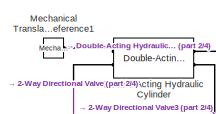
[diagram: root canvas - part 1/4, top center region]
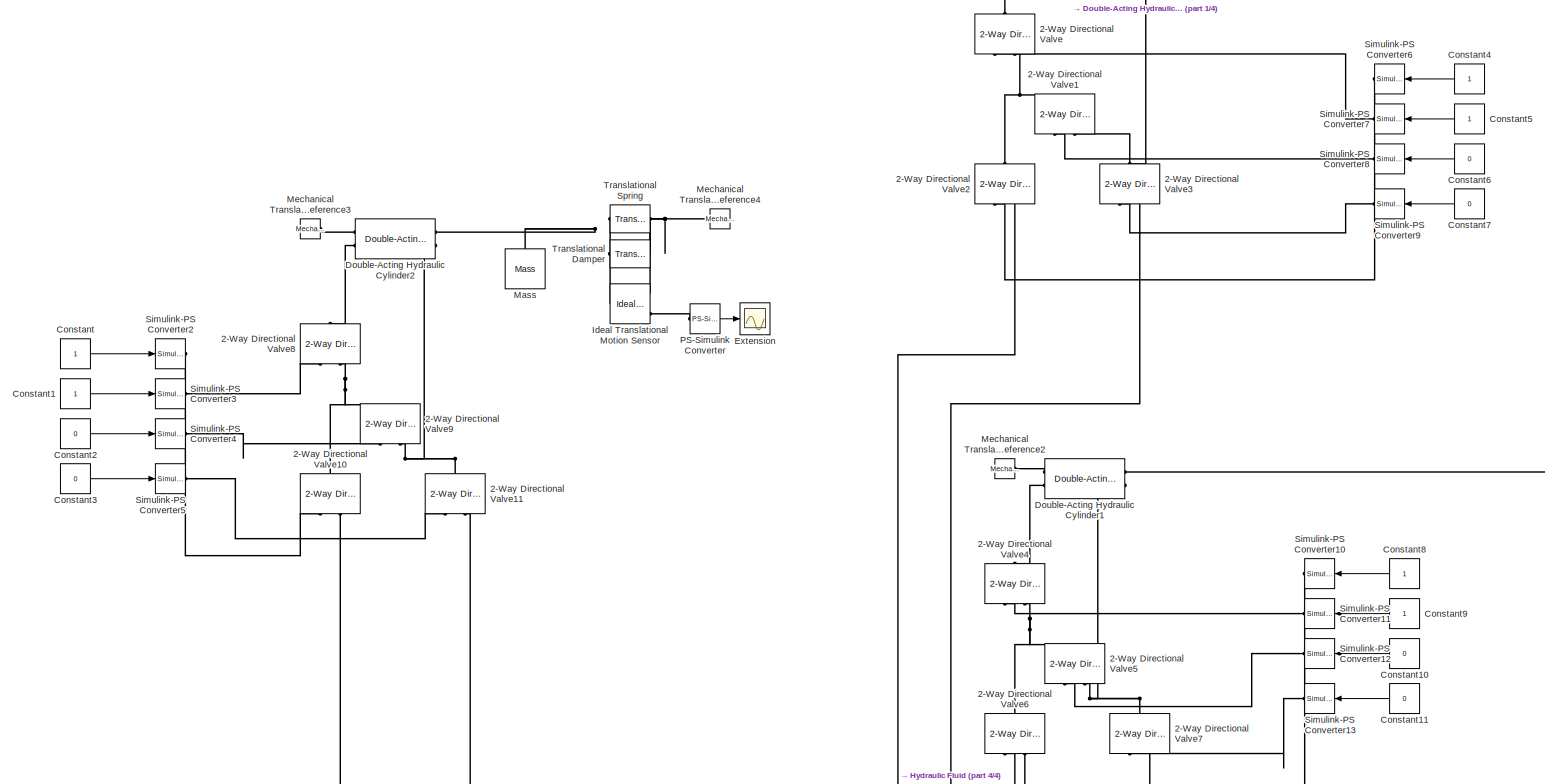
[diagram: root canvas - part 2/4, full width, middle band]
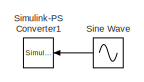
[diagram: root canvas - part 3/4, top right region]
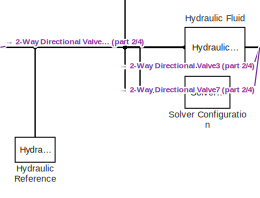
[diagram: root canvas - part 4/4, bottom center region]
MODEL slx_17e546ba9f6c
KIND model
BLOCK [Reference] 2-Way Directional Valve  REF=sh_lib/Valves/Directional Valves/2-Way Directional
Valve
  A_leak = 1e-12
  A_leak_unit = m^2
  C_d = 0.7
  C_d_unit = 1
  ClassName = valve_dir_2_way
  ComponentPath = sh.valves.directional_valves.valve_dir_2_way
  ComponentVariantNames = valve_dir_2_way
  ComponentVariants = sh.valves.directional_valves.valve_dir_2_way
  Ports = [0, 0, 0, 0, 0, 2, 1]
  Re_cr = 12
  Re_cr_unit = 1
  SchemaVersion = 1
  SourceBlock = sh_lib/Valves/Directional Valves/2-Way Directional\nValve
  SourceFile = sh.valves.directional_valves.valve_dir_2_way
  SourceType = 2-Way Directional\nValve
  area_max = 5e-5
  area_max_unit = m^2
  area_tab = [ 1e-9 2.0352e-7 4.0736e-5 1.1438e-4 3.4356e-4 ]
  area_tab_unit = m^2
  extrap_method = 1
  extrap_method_unit = 1
  flow_rate_tab = [ -1e-7 -7.0711e-8 -4.4721e-8 4.4721e-8 7.0711e-8 1e-7; -2.0352e-5 -1.4391e-5 -9.1017e-6 9.1017e-6 1.4391e-5 2.0352e-5; -0.0040736 -0.0028805 -0.0018218 0.0018218 0.0028805 0.0040736; -0.011438 -0.0080879 -0.0051152 0.0051152 0.0080879 0.011438; -0.034356 -0.024293 -0.015364 0.015364 0.024293 0.034356 ]  <repeated x12 — deduplicated; at blocks: 2-Way Directional Valve, 2-Way Directional Valve1, 2-Way Directional Valve10, 2-Way Directional Valve11, 2-Way Directional Valve2, 2-Way Directional Valve3, 2-Way Directional Valve4, 2-Way Directional Valve5, 2-Way Directional Valve6, 2-Way Directional Valve7, 2-Way Directional Valve8, 2-Way Directional Valve9>
  flow_rate_tab_unit = m^3/s
  interp_method = 1
  interp_method_unit = 1
  mdl_type = 1
  mdl_type_unit = 1
  opening_max = 0.005
  opening_max_unit = m
  opening_tab = [ -0.002 0 0.002 0.005 0.015 ]
  opening_tab_unit = m
  pressure_tab = [ -1e+7 -5e+6 -2e+6 2e+6 5e+6 1e+7 ]
  pressure_tab_unit = Pa
  x_0 = 0
  x_0_unit = m
BLOCK [Reference] 2-Way Directional Valve1  REF=sh_lib/Valves/Directional Valves/2-Way Directional
Valve
  A_leak = 1e-12
  A_leak_unit = m^2
  C_d = 0.7
  C_d_unit = 1
  ClassName = valve_dir_2_way
  ComponentPath = sh.valves.directional_valves.valve_dir_2_way
  ComponentVariantNames = valve_dir_2_way
  ComponentVariants = sh.valves.directional_valves.valve_dir_2_way
  Ports = [0, 0, 0, 0, 0, 2, 1]
  Re_cr = 12
  Re_cr_unit = 1
  SchemaVersion = 1
  SourceBlock = sh_lib/Valves/Directional Valves/2-Way Directional\nValve
  SourceFile = sh.valves.directional_valves.valve_dir_2_way
  SourceType = 2-Way Directional\nValve
  area_max = 5e-5
  area_max_unit = m^2
  area_tab = [ 1e-9 2.0352e-7 4.0736e-5 1.1438e-4 3.4356e-4 ]
  area_tab_unit = m^2
  extrap_method = 1
  extrap_method_unit = 1
  flow_rate_tab_unit = m^3/s
  interp_method = 1
  interp_method_unit = 1
  mdl_type = 1
  mdl_type_unit = 1
  opening_max = 0.005
  opening_max_unit = m
  opening_tab = [ -0.002 0 0.002 0.005 0.015 ]
  opening_tab_unit = m
  pressure_tab = [ -1e+7 -5e+6 -2e+6 2e+6 5e+6 1e+7 ]
  pressure_tab_unit = Pa
  x_0 = 0
  x_0_unit = m
BLOCK [Reference] 2-Way Directional Valve10  REF=sh_lib/Valves/Directional Valves/2-Way Directional
Valve
  A_leak = 1e-12
  A_leak_unit = m^2
  C_d = 0.7
  C_d_unit = 1
  ClassName = valve_dir_2_way
  ComponentPath = sh.valves.directional_valves.valve_dir_2_way
  ComponentVariantNames = valve_dir_2_way
  ComponentVariants = sh.valves.directional_valves.valve_dir_2_way
  Ports = [0, 0, 0, 0, 0, 2, 1]
  Re_cr = 12
  Re_cr_unit = 1
  SchemaVersion = 1
  SourceBlock = sh_lib/Valves/Directional Valves/2-Way Directional\nValve
  SourceFile = sh.valves.directional_valves.valve_dir_2_way
  SourceType = 2-Way Directional\nValve
  area_max = 5e-5
  area_max_unit = m^2
  area_tab = [ 1e-9 2.0352e-7 4.0736e-5 1.1438e-4 3.4356e-4 ]
  area_tab_unit = m^2
  extrap_method = 1
  extrap_method_unit = 1
  flow_rate_tab_unit = m^3/s
  interp_method = 1
  interp_method_unit = 1
  mdl_type = 1
  mdl_type_unit = 1
  opening_max = 0.005
  opening_max_unit = m
  opening_tab = [ -0.002 0 0.002 0.005 0.015 ]
  opening_tab_unit = m
  pressure_tab = [ -1e+7 -5e+6 -2e+6 2e+6 5e+6 1e+7 ]
  pressure_tab_unit = Pa
  x_0 = 0
  x_0_unit = m
BLOCK [Reference] 2-Way Directional Valve11  REF=sh_lib/Valves/Directional Valves/2-Way Directional
Valve
  A_leak = 1e-12
  A_leak_unit = m^2
  C_d = 0.7
  C_d_unit = 1
  ClassName = valve_dir_2_way
  ComponentPath = sh.valves.directional_valves.valve_dir_2_way
  ComponentVariantNames = valve_dir_2_way
  ComponentVariants = sh.valves.directional_valves.valve_dir_2_way
  Ports = [0, 0, 0, 0, 0, 2, 1]
  Re_cr = 12
  Re_cr_unit = 1
  SchemaVersion = 1
  SourceBlock = sh_lib/Valves/Directional Valves/2-Way Directional\nValve
  SourceFile = sh.valves.directional_valves.valve_dir_2_way
  SourceType = 2-Way Directional\nValve
  area_max = 5e-5
  area_max_unit = m^2
  area_tab = [ 1e-9 2.0352e-7 4.0736e-5 1.1438e-4 3.4356e-4 ]
  area_tab_unit = m^2
  extrap_method = 1
  extrap_method_unit = 1
  flow_rate_tab_unit = m^3/s
  interp_method = 1
  interp_method_unit = 1
  mdl_type = 1
  mdl_type_unit = 1
  opening_max = 0.005
  opening_max_unit = m
  opening_tab = [ -0.002 0 0.002 0.005 0.015 ]
  opening_tab_unit = m
  pressure_tab = [ -1e+7 -5e+6 -2e+6 2e+6 5e+6 1e+7 ]
  pressure_tab_unit = Pa
  x_0 = 0
  x_0_unit = m
BLOCK [Reference] 2-Way Directional Valve2  REF=sh_lib/Valves/Directional Valves/2-Way Directional
Valve
  A_leak = 1e-12
  A_leak_unit = m^2
  C_d = 0.7
  C_d_unit = 1
  ClassName = valve_dir_2_way
  ComponentPath = sh.valves.directional_valves.valve_dir_2_way
  ComponentVariantNames = valve_dir_2_way
  ComponentVariants = sh.valves.directional_valves.valve_dir_2_way
  Ports = [0, 0, 0, 0, 0, 2, 1]
  Re_cr = 12
  Re_cr_unit = 1
  SchemaVersion = 1
  SourceBlock = sh_lib/Valves/Directional Valves/2-Way Directional\nValve
  SourceFile = sh.valves.directional_valves.valve_dir_2_way
  SourceType = 2-Way Directional\nValve
  area_max = 5e-5
  area_max_unit = m^2
  area_tab = [ 1e-9 2.0352e-7 4.0736e-5 1.1438e-4 3.4356e-4 ]
  area_tab_unit = m^2
  extrap_method = 1
  extrap_method_unit = 1
  flow_rate_tab_unit = m^3/s
  interp_method = 1
  interp_method_unit = 1
  mdl_type = 1
  mdl_type_unit = 1
  opening_max = 0.005
  opening_max_unit = m
  opening_tab = [ -0.002 0 0.002 0.005 0.015 ]
  opening_tab_unit = m
  pressure_tab = [ -1e+7 -5e+6 -2e+6 2e+6 5e+6 1e+7 ]
  pressure_tab_unit = Pa
  x_0 = 0
  x_0_unit = m
BLOCK [Reference] 2-Way Directional Valve3  REF=sh_lib/Valves/Directional Valves/2-Way Directional
Valve
  A_leak = 1e-12
  A_leak_unit = m^2
  C_d = 0.7
  C_d_unit = 1
  ClassName = valve_dir_2_way
  ComponentPath = sh.valves.directional_valves.valve_dir_2_way
  ComponentVariantNames = valve_dir_2_way
  ComponentVariants = sh.valves.directional_valves.valve_dir_2_way
  Ports = [0, 0, 0, 0, 0, 2, 1]
  Re_cr = 12
  Re_cr_unit = 1
  SchemaVersion = 1
  SourceBlock = sh_lib/Valves/Directional Valves/2-Way Directional\nValve
  SourceFile = sh.valves.directional_valves.valve_dir_2_way
  SourceType = 2-Way Directional\nValve
  area_max = 5e-5
  area_max_unit = m^2
  area_tab = [ 1e-9 2.0352e-7 4.0736e-5 1.1438e-4 3.4356e-4 ]
  area_tab_unit = m^2
  extrap_method = 1
  extrap_method_unit = 1
  flow_rate_tab_unit = m^3/s
  interp_method = 1
  interp_method_unit = 1
  mdl_type = 1
  mdl_type_unit = 1
  opening_max = 0.005
  opening_max_unit = m
  opening_tab = [ -0.002 0 0.002 0.005 0.015 ]
  opening_tab_unit = m
  pressure_tab = [ -1e+7 -5e+6 -2e+6 2e+6 5e+6 1e+7 ]
  pressure_tab_unit = Pa
  x_0 = 0
  x_0_unit = m
BLOCK [Reference] 2-Way Directional Valve4  REF=sh_lib/Valves/Directional Valves/2-Way Directional
Valve
  A_leak = 1e-12
  A_leak_unit = m^2
  C_d = 0.7
  C_d_unit = 1
  ClassName = valve_dir_2_way
  ComponentPath = sh.valves.directional_valves.valve_dir_2_way
  ComponentVariantNames = valve_dir_2_way
  ComponentVariants = sh.valves.directional_valves.valve_dir_2_way
  Ports = [0, 0, 0, 0, 0, 2, 1]
  Re_cr = 12
  Re_cr_unit = 1
  SchemaVersion = 1
  SourceBlock = sh_lib/Valves/Directional Valves/2-Way Directional\nValve
  SourceFile = sh.valves.directional_valves.valve_dir_2_way
  SourceType = 2-Way Directional\nValve
  area_max = 5e-5
  area_max_unit = m^2
  area_tab = [ 1e-9 2.0352e-7 4.0736e-5 1.1438e-4 3.4356e-4 ]
  area_tab_unit = m^2
  extrap_method = 1
  extrap_method_unit = 1
  flow_rate_tab_unit = m^3/s
  interp_method = 1
  interp_method_unit = 1
  mdl_type = 1
  mdl_type_unit = 1
  opening_max = 0.005
  opening_max_unit = m
  opening_tab = [ -0.002 0 0.002 0.005 0.015 ]
  opening_tab_unit = m
  pressure_tab = [ -1e+7 -5e+6 -2e+6 2e+6 5e+6 1e+7 ]
  pressure_tab_unit = Pa
  x_0 = 0
  x_0_unit = m
BLOCK [Reference] 2-Way Directional Valve5  REF=sh_lib/Valves/Directional Valves/2-Way Directional
Valve
  A_leak = 1e-12
  A_leak_unit = m^2
  C_d = 0.7
  C_d_unit = 1
  ClassName = valve_dir_2_way
  ComponentPath = sh.valves.directional_valves.valve_dir_2_way
  ComponentVariantNames = valve_dir_2_way
  ComponentVariants = sh.valves.directional_valves.valve_dir_2_way
  Ports = [0, 0, 0, 0, 0, 2, 1]
  Re_cr = 12
  Re_cr_unit = 1
  SchemaVersion = 1
  SourceBlock = sh_lib/Valves/Directional Valves/2-Way Directional\nValve
  SourceFile = sh.valves.directional_valves.valve_dir_2_way
  SourceType = 2-Way Directional\nValve
  area_max = 5e-5
  area_max_unit = m^2
  area_tab = [ 1e-9 2.0352e-7 4.0736e-5 1.1438e-4 3.4356e-4 ]
  area_tab_unit = m^2
  extrap_method = 1
  extrap_method_unit = 1
  flow_rate_tab_unit = m^3/s
  interp_method = 1
  interp_method_unit = 1
  mdl_type = 1
  mdl_type_unit = 1
  opening_max = 0.005
  opening_max_unit = m
  opening_tab = [ -0.002 0 0.002 0.005 0.015 ]
  opening_tab_unit = m
  pressure_tab = [ -1e+7 -5e+6 -2e+6 2e+6 5e+6 1e+7 ]
  pressure_tab_unit = Pa
  x_0 = 0
  x_0_unit = m
BLOCK [Reference] 2-Way Directional Valve6  REF=sh_lib/Valves/Directional Valves/2-Way Directional
Valve
  A_leak = 1e-12
  A_leak_unit = m^2
  C_d = 0.7
  C_d_unit = 1
  ClassName = valve_dir_2_way
  ComponentPath = sh.valves.directional_valves.valve_dir_2_way
  ComponentVariantNames = valve_dir_2_way
  ComponentVariants = sh.valves.directional_valves.valve_dir_2_way
  Ports = [0, 0, 0, 0, 0, 2, 1]
  Re_cr = 12
  Re_cr_unit = 1
  SchemaVersion = 1
  SourceBlock = sh_lib/Valves/Directional Valves/2-Way Directional\nValve
  SourceFile = sh.valves.directional_valves.valve_dir_2_way
  SourceType = 2-Way Directional\nValve
  area_max = 5e-5
  area_max_unit = m^2
  area_tab = [ 1e-9 2.0352e-7 4.0736e-5 1.1438e-4 3.4356e-4 ]
  area_tab_unit = m^2
  extrap_method = 1
  extrap_method_unit = 1
  flow_rate_tab_unit = m^3/s
  interp_method = 1
  interp_method_unit = 1
  mdl_type = 1
  mdl_type_unit = 1
  opening_max = 0.005
  opening_max_unit = m
  opening_tab = [ -0.002 0 0.002 0.005 0.015 ]
  opening_tab_unit = m
  pressure_tab = [ -1e+7 -5e+6 -2e+6 2e+6 5e+6 1e+7 ]
  pressure_tab_unit = Pa
  x_0 = 0
  x_0_unit = m
BLOCK [Reference] 2-Way Directional Valve7  REF=sh_lib/Valves/Directional Valves/2-Way Directional
Valve
  A_leak = 1e-12
  A_leak_unit = m^2
  C_d = 0.7
  C_d_unit = 1
  ClassName = valve_dir_2_way
  ComponentPath = sh.valves.directional_valves.valve_dir_2_way
  ComponentVariantNames = valve_dir_2_way
  ComponentVariants = sh.valves.directional_valves.valve_dir_2_way
  Ports = [0, 0, 0, 0, 0, 2, 1]
  Re_cr = 12
  Re_cr_unit = 1
  SchemaVersion = 1
  SourceBlock = sh_lib/Valves/Directional Valves/2-Way Directional\nValve
  SourceFile = sh.valves.directional_valves.valve_dir_2_way
  SourceType = 2-Way Directional\nValve
  area_max = 5e-5
  area_max_unit = m^2
  area_tab = [ 1e-9 2.0352e-7 4.0736e-5 1.1438e-4 3.4356e-4 ]
  area_tab_unit = m^2
  extrap_method = 1
  extrap_method_unit = 1
  flow_rate_tab_unit = m^3/s
  interp_method = 1
  interp_method_unit = 1
  mdl_type = 1
  mdl_type_unit = 1
  opening_max = 0.005
  opening_max_unit = m
  opening_tab = [ -0.002 0 0.002 0.005 0.015 ]
  opening_tab_unit = m
  pressure_tab = [ -1e+7 -5e+6 -2e+6 2e+6 5e+6 1e+7 ]
  pressure_tab_unit = Pa
  x_0 = 0
  x_0_unit = m
BLOCK [Reference] 2-Way Directional Valve8  REF=sh_lib/Valves/Directional Valves/2-Way Directional
Valve
  A_leak = 1e-12
  A_leak_unit = m^2
  C_d = 0.7
  C_d_unit = 1
  ClassName = valve_dir_2_way
  ComponentPath = sh.valves.directional_valves.valve_dir_2_way
  ComponentVariantNames = valve_dir_2_way
  ComponentVariants = sh.valves.directional_valves.valve_dir_2_way
  Ports = [0, 0, 0, 0, 0, 2, 1]
  Re_cr = 12
  Re_cr_unit = 1
  SchemaVersion = 1
  SourceBlock = sh_lib/Valves/Directional Valves/2-Way Directional\nValve
  SourceFile = sh.valves.directional_valves.valve_dir_2_way
  SourceType = 2-Way Directional\nValve
  area_max = 5e-5
  area_max_unit = m^2
  area_tab = [ 1e-9 2.0352e-7 4.0736e-5 1.1438e-4 3.4356e-4 ]
  area_tab_unit = m^2
  extrap_method = 1
  extrap_method_unit = 1
  flow_rate_tab_unit = m^3/s
  interp_method = 1
  interp_method_unit = 1
  mdl_type = 1
  mdl_type_unit = 1
  opening_max = 0.005
  opening_max_unit = m
  opening_tab = [ -0.002 0 0.002 0.005 0.015 ]
  opening_tab_unit = m
  pressure_tab = [ -1e+7 -5e+6 -2e+6 2e+6 5e+6 1e+7 ]
  pressure_tab_unit = Pa
  x_0 = 0
  x_0_unit = m
BLOCK [Reference] 2-Way Directional Valve9  REF=sh_lib/Valves/Directional Valves/2-Way Directional
Valve
  A_leak = 1e-12
  A_leak_unit = m^2
  C_d = 0.7
  C_d_unit = 1
  ClassName = valve_dir_2_way
  ComponentPath = sh.valves.directional_valves.valve_dir_2_way
  ComponentVariantNames = valve_dir_2_way
  ComponentVariants = sh.valves.directional_valves.valve_dir_2_way
  Ports = [0, 0, 0, 0, 0, 2, 1]
  Re_cr = 12
  Re_cr_unit = 1
  SchemaVersion = 1
  SourceBlock = sh_lib/Valves/Directional Valves/2-Way Directional\nValve
  SourceFile = sh.valves.directional_valves.valve_dir_2_way
  SourceType = 2-Way Directional\nValve
  area_max = 5e-5
  area_max_unit = m^2
  area_tab = [ 1e-9 2.0352e-7 4.0736e-5 1.1438e-4 3.4356e-4 ]
  area_tab_unit = m^2
  extrap_method = 1
  extrap_method_unit = 1
  flow_rate_tab_unit = m^3/s
  interp_method = 1
  interp_method_unit = 1
  mdl_type = 1
  mdl_type_unit = 1
  opening_max = 0.005
  opening_max_unit = m
  opening_tab = [ -0.002 0 0.002 0.005 0.015 ]
  opening_tab_unit = m
  pressure_tab = [ -1e+7 -5e+6 -2e+6 2e+6 5e+6 1e+7 ]
  pressure_tab_unit = Pa
  x_0 = 0
  x_0_unit = m
BLOCK [Constant] Constant
BLOCK [Constant] Constant1
BLOCK [Constant] Constant10
  Value = 0
BLOCK [Constant] Constant11
  Value = 0
BLOCK [Constant] Constant2
  Value = 0
BLOCK [Constant] Constant3
  Value = 0
BLOCK [Constant] Constant4
BLOCK [Constant] Constant5
BLOCK [Constant] Constant6
  Value = 0
BLOCK [Constant] Constant7
  Value = 0
BLOCK [Constant] Constant8
BLOCK [Constant] Constant9
BLOCK [Reference] Double-Acting Hydraulic Cylinder  REF=sh_lib/Hydraulic Cylinders/Double-Acting
Hydraulic Cylinder
  ClassName = cylinder_da
  ComponentPath = sh.cylinders.cylinder_da
  ComponentVariantNames = cylinder_da
  ComponentVariants = sh.cylinders.cylinder_da
  D = 150
  D_unit = N/(m/s)
  Ports = [0, 0, 0, 0, 0, 2, 2]
  SchemaVersion = 1
  SourceBlock = sh_lib/Hydraulic Cylinders/Double-Acting\nHydraulic Cylinder
  SourceFile = sh.cylinders.cylinder_da
  SourceType = Double-Acting\nHydraulic Cylinder
  area_A = 1e-3
  area_A_unit = m^2
  area_B = 0.5e-3
  area_B_unit = m^2
  dead_vol_A = 1e-4
  dead_vol_A_unit = m^3
  dead_vol_B = 1e-4
  dead_vol_B_unit = m^3
  init_pos = 0
  init_pos_unit = m
  init_pressure_A = 0
  init_pressure_A_unit = Pa
  init_pressure_B = 0
  init_pressure_B_unit = Pa
  k_sh = 1.4
  k_sh_unit = 1
  or = 1
  or_sign = 1
  or_sign_unit = 1
  or_unit = 1
  stiff = 1e6
  stiff_unit = N/m
  stroke = 0.1
  stroke_unit = m
BLOCK [Reference] Double-Acting Hydraulic Cylinder1  REF=sh_lib/Hydraulic Cylinders/Double-Acting
Hydraulic Cylinder
  ClassName = cylinder_da
  ComponentPath = sh.cylinders.cylinder_da
  ComponentVariantNames = cylinder_da
  ComponentVariants = sh.cylinders.cylinder_da
  D = 150
  D_unit = N/(m/s)
  Ports = [0, 0, 0, 0, 0, 2, 2]
  SchemaVersion = 1
  SourceBlock = sh_lib/Hydraulic Cylinders/Double-Acting\nHydraulic Cylinder
  SourceFile = sh.cylinders.cylinder_da
  SourceType = Double-Acting\nHydraulic Cylinder
  area_A = 1e-3
  area_A_unit = m^2
  area_B = 0.5e-3
  area_B_unit = m^2
  dead_vol_A = 1e-4
  dead_vol_A_unit = m^3
  dead_vol_B = 1e-4
  dead_vol_B_unit = m^3
  init_pos = 0
  init_pos_unit = m
  init_pressure_A = 0
  init_pressure_A_unit = Pa
  init_pressure_B = 0
  init_pressure_B_unit = Pa
  k_sh = 1.4
  k_sh_unit = 1
  or = 1
  or_sign = 1
  or_sign_unit = 1
  or_unit = 1
  stiff = 1e6
  stiff_unit = N/m
  stroke = 0.1
  stroke_unit = m
BLOCK [Reference] Double-Acting Hydraulic Cylinder2  REF=sh_lib/Hydraulic Cylinders/Double-Acting
Hydraulic Cylinder
  ClassName = cylinder_da
  ComponentPath = sh.cylinders.cylinder_da
  ComponentVariantNames = cylinder_da
  ComponentVariants = sh.cylinders.cylinder_da
  D = 150
  D_unit = N/(m/s)
  Ports = [0, 0, 0, 0, 0, 2, 2]
  SchemaVersion = 1
  SourceBlock = sh_lib/Hydraulic Cylinders/Double-Acting\nHydraulic Cylinder
  SourceFile = sh.cylinders.cylinder_da
  SourceType = Double-Acting\nHydraulic Cylinder
  area_A = 1e-3
  area_A_unit = m^2
  area_B = 0.5e-3
  area_B_unit = m^2
  dead_vol_A = 1e-4
  dead_vol_A_unit = m^3
  dead_vol_B = 1e-4
  dead_vol_B_unit = m^3
  init_pos = 0
  init_pos_unit = m
  init_pressure_A = 0
  init_pressure_A_unit = Pa
  init_pressure_B = 0
  init_pressure_B_unit = Pa
  k_sh = 1.4
  k_sh_unit = 1
  or = 1
  or_sign = 1
  or_sign_unit = 1
  or_unit = 1
  stiff = 1e6
  stiff_unit = N/m
  stroke = 0.1
  stroke_unit = m
BLOCK [Scope] Extension
  DataFormat = StructureWithTime
  Floating = off
  LimitDataPoints = off
  NumInputPorts = 1
  Ports = [1]
  SampleTime = 0
  SaveName = Actuation_System_DATA
  SaveToWorkspace = on
  ShowLegends = off
  TimeRange = 10
  YMax = 0.6000000000000001
  YMin = -0.2
BLOCK [Reference] Hydraulic Fluid  REF=sh_lib/Hydraulic Utilities/Hydraulic Fluid
  ClassName = hydraulic_fluid
  ComponentPath = sh.utilities.hydraulic_fluid
  ComponentVariantNames = hydraulic_fluid
  ComponentVariants = sh.utilities.hydraulic_fluid
  DataSource = 1
  DataSource_unit = 1
  Ports = [0, 0, 0, 0, 0, 0, 1]
  SchemaVersion = 1
  SelFluid = 24
  SelFluid_unit = 1
  SourceBlock = sh_lib/Hydraulic Utilities/Hydraulic Fluid
  SourceFile = sh.utilities.hydraulic_fluid
  SourceType = Hydraulic Fluid
  SysTemp = 60
  SysTemp_unit = c
  TrapAir = 0.005
  TrapAir_unit = 1
  ViscDerFactor = 1
  ViscDerFactor_unit = 1
  range_error = 2
  range_error_unit = 1
BLOCK [Reference] Hydraulic Reference  REF=fl_lib/Hydraulic/Hydraulic Elements/Hydraulic Reference
  ClassName = hydro_reference
  ComponentPath = foundation.hydraulic.elements.reference
  ComponentVariantNames = reference
  ComponentVariants = foundation.hydraulic.elements.reference
  Ports = [0, 0, 0, 0, 0, 1]
  SchemaVersion = 1
  SourceBlock = fl_lib/Hydraulic/Hydraulic Elements/Hydraulic Reference
  SourceFile = foundation.hydraulic.elements.reference
  SourceType = Hydraulic Reference
BLOCK [Reference] Ideal Translational Motion Sensor  REF=fl_lib/Mechanical/Mechanical Sensors/Ideal Translational
Motion Sensor
  ClassName = velocity
  ComponentPath = foundation.mechanical.sensors.velocity
  ComponentVariantNames = velocity
  ComponentVariants = foundation.mechanical.sensors.velocity
  Ports = [0, 0, 0, 0, 0, 1, 3]
  SchemaVersion = 1
  SourceBlock = fl_lib/Mechanical/Mechanical Sensors/Ideal Translational\nMotion Sensor
  SourceFile = foundation.mechanical.sensors.velocity
  SourceType = Ideal Translational\nMotion Sensor
  offset = 0
  offset_unit = m
BLOCK [Reference] Mass  REF=fl_lib/Mechanical/Translational
Elements/Mass
  ClassName = mass
  ComponentPath = foundation.mechanical.translational.mass
  ComponentVariantNames = mass
  ComponentVariants = foundation.mechanical.translational.mass
  Ports = [0, 0, 0, 0, 0, 1]
  SchemaVersion = 1
  SourceBlock = fl_lib/Mechanical/Translational\nElements/Mass
  SourceFile = foundation.mechanical.translational.mass
  SourceType = Mass
  f = 0
  f_priority = High
  f_specify = off
  f_unit = N
  mass = 100
  mass_unit = kg
  v = 0
  v_priority = High
  v_specify = on
  v_unit = m/s
BLOCK [Reference] Mechanical Translational Reference1  REF=fl_lib/Mechanical/Translational
Elements/Mechanical
Translational
Reference
  ClassName = reference_transl
  ComponentPath = foundation.mechanical.translational.reference
  ComponentVariantNames = reference
  ComponentVariants = foundation.mechanical.translational.reference
  Ports = [0, 0, 0, 0, 0, 1]
  SchemaVersion = 1
  SourceBlock = fl_lib/Mechanical/Translational\nElements/Mechanical\nTranslational\nReference
  SourceFile = foundation.mechanical.translational.reference
  SourceType = Mechanical\nTranslational\nReference
  Tag = Factory Generic
BLOCK [Reference] Mechanical Translational Reference2  REF=fl_lib/Mechanical/Translational
Elements/Mechanical
Translational
Reference
  ClassName = reference_transl
  ComponentPath = foundation.mechanical.translational.reference
  ComponentVariantNames = reference
  ComponentVariants = foundation.mechanical.translational.reference
  Ports = [0, 0, 0, 0, 0, 1]
  SchemaVersion = 1
  SourceBlock = fl_lib/Mechanical/Translational\nElements/Mechanical\nTranslational\nReference
  SourceFile = foundation.mechanical.translational.reference
  SourceType = Mechanical\nTranslational\nReference
  Tag = Factory Generic
BLOCK [Reference] Mechanical Translational Reference3  REF=fl_lib/Mechanical/Translational
Elements/Mechanical
Translational
Reference
  ClassName = reference_transl
  ComponentPath = foundation.mechanical.translational.reference
  ComponentVariantNames = reference
  ComponentVariants = foundation.mechanical.translational.reference
  Ports = [0, 0, 0, 0, 0, 1]
  SchemaVersion = 1
  SourceBlock = fl_lib/Mechanical/Translational\nElements/Mechanical\nTranslational\nReference
  SourceFile = foundation.mechanical.translational.reference
  SourceType = Mechanical\nTranslational\nReference
  Tag = Factory Generic
BLOCK [Reference] Mechanical Translational Reference4  REF=fl_lib/Mechanical/Translational
Elements/Mechanical
Translational
Reference
  ClassName = reference_transl
  ComponentPath = foundation.mechanical.translational.reference
  ComponentVariantNames = reference
  ComponentVariants = foundation.mechanical.translational.reference
  Ports = [0, 0, 0, 0, 0, 1]
  SchemaVersion = 1
  SourceBlock = fl_lib/Mechanical/Translational\nElements/Mechanical\nTranslational\nReference
  SourceFile = foundation.mechanical.translational.reference
  SourceType = Mechanical\nTranslational\nReference
  Tag = Factory Generic
BLOCK [Reference] PS-Simulink Converter  REF=nesl_utility/PS-Simulink
Converter
  AffineConversion = off
  Frequencies = []
  LeftPortType = input
  PhysicalDomain = network_engine_domain
  Ports = [0, 1, 0, 0, 0, 1]
  PseudoPeriodic = off
  RightPortType = output
  SourceBlock = nesl_utility/PS-Simulink\nConverter
  SourceType = PS-Simulink\nConverter
  SubClassName = ps_output
  Unit = 1
BLOCK [Reference] Simulink-PS Converter1  REF=nesl_utility/Simulink-PS
Converter
  AffineConversion = off
  Frequencies = []
  InputFilterTimeConstant = .001
  InputFiltering = off
  LeftPortType = input
  NoiseDistribution = none
  NoiseParameters = []
  PhysicalDomain = network_engine_domain
  Ports = [1, 0, 0, 0, 0, 0, 1]
  PseudoPeriodic = off
  RightPortType = output
  SimscapeFilterOrder = 1
  SourceBlock = nesl_utility/Simulink-PS\nConverter
  SourceType = Simulink-PS\nConverter
  SubClassName = ps_input
  UdotUserProvided = 1
  Unit = m
BLOCK [Reference] Simulink-PS Converter10  REF=nesl_utility/Simulink-PS
Converter
  AffineConversion = off
  Frequencies = []
  InputFilterTimeConstant = .001
  InputFiltering = off
  LeftPortType = input
  NoiseDistribution = none
  NoiseParameters = []
  PhysicalDomain = network_engine_domain
  Ports = [1, 0, 0, 0, 0, 0, 1]
  PseudoPeriodic = off
  RightPortType = output
  SimscapeFilterOrder = 1
  SourceBlock = nesl_utility/Simulink-PS\nConverter
  SourceType = Simulink-PS\nConverter
  SubClassName = ps_input
  UdotUserProvided = 1
  Unit = m
BLOCK [Reference] Simulink-PS Converter11  REF=nesl_utility/Simulink-PS
Converter
  AffineConversion = off
  Frequencies = []
  InputFilterTimeConstant = .001
  InputFiltering = off
  LeftPortType = input
  NoiseDistribution = none
  NoiseParameters = []
  PhysicalDomain = network_engine_domain
  Ports = [1, 0, 0, 0, 0, 0, 1]
  PseudoPeriodic = off
  RightPortType = output
  SimscapeFilterOrder = 1
  SourceBlock = nesl_utility/Simulink-PS\nConverter
  SourceType = Simulink-PS\nConverter
  SubClassName = ps_input
  UdotUserProvided = 1
  Unit = m
BLOCK [Reference] Simulink-PS Converter12  REF=nesl_utility/Simulink-PS
Converter
  AffineConversion = off
  Frequencies = []
  InputFilterTimeConstant = .001
  InputFiltering = off
  LeftPortType = input
  NoiseDistribution = none
  NoiseParameters = []
  PhysicalDomain = network_engine_domain
  Ports = [1, 0, 0, 0, 0, 0, 1]
  PseudoPeriodic = off
  RightPortType = output
  SimscapeFilterOrder = 1
  SourceBlock = nesl_utility/Simulink-PS\nConverter
  SourceType = Simulink-PS\nConverter
  SubClassName = ps_input
  UdotUserProvided = 1
  Unit = m
BLOCK [Reference] Simulink-PS Converter13  REF=nesl_utility/Simulink-PS
Converter
  AffineConversion = off
  Frequencies = []
  InputFilterTimeConstant = .001
  InputFiltering = off
  LeftPortType = input
  NoiseDistribution = none
  NoiseParameters = []
  PhysicalDomain = network_engine_domain
  Ports = [1, 0, 0, 0, 0, 0, 1]
  PseudoPeriodic = off
  RightPortType = output
  SimscapeFilterOrder = 1
  SourceBlock = nesl_utility/Simulink-PS\nConverter
  SourceType = Simulink-PS\nConverter
  SubClassName = ps_input
  UdotUserProvided = 1
  Unit = m
BLOCK [Reference] Simulink-PS Converter2  REF=nesl_utility/Simulink-PS
Converter
  AffineConversion = off
  Frequencies = []
  InputFilterTimeConstant = .001
  InputFiltering = off
  LeftPortType = input
  NoiseDistribution = none
  NoiseParameters = []
  PhysicalDomain = network_engine_domain
  Ports = [1, 0, 0, 0, 0, 0, 1]
  PseudoPeriodic = off
  RightPortType = output
  SimscapeFilterOrder = 1
  SourceBlock = nesl_utility/Simulink-PS\nConverter
  SourceType = Simulink-PS\nConverter
  SubClassName = ps_input
  UdotUserProvided = 1
  Unit = m
BLOCK [Reference] Simulink-PS Converter3  REF=nesl_utility/Simulink-PS
Converter
  AffineConversion = off
  Frequencies = []
  InputFilterTimeConstant = .001
  InputFiltering = off
  LeftPortType = input
  NoiseDistribution = none
  NoiseParameters = []
  PhysicalDomain = network_engine_domain
  Ports = [1, 0, 0, 0, 0, 0, 1]
  PseudoPeriodic = off
  RightPortType = output
  SimscapeFilterOrder = 1
  SourceBlock = nesl_utility/Simulink-PS\nConverter
  SourceType = Simulink-PS\nConverter
  SubClassName = ps_input
  UdotUserProvided = 1
  Unit = m
BLOCK [Reference] Simulink-PS Converter4  REF=nesl_utility/Simulink-PS
Converter
  AffineConversion = off
  Frequencies = []
  InputFilterTimeConstant = .001
  InputFiltering = off
  LeftPortType = input
  NoiseDistribution = none
  NoiseParameters = []
  PhysicalDomain = network_engine_domain
  Ports = [1, 0, 0, 0, 0, 0, 1]
  PseudoPeriodic = off
  RightPortType = output
  SimscapeFilterOrder = 1
  SourceBlock = nesl_utility/Simulink-PS\nConverter
  SourceType = Simulink-PS\nConverter
  SubClassName = ps_input
  UdotUserProvided = 1
  Unit = m
BLOCK [Reference] Simulink-PS Converter5  REF=nesl_utility/Simulink-PS
Converter
  AffineConversion = off
  Frequencies = []
  InputFilterTimeConstant = .001
  InputFiltering = off
  LeftPortType = input
  NoiseDistribution = none
  NoiseParameters = []
  PhysicalDomain = network_engine_domain
  Ports = [1, 0, 0, 0, 0, 0, 1]
  PseudoPeriodic = off
  RightPortType = output
  SimscapeFilterOrder = 1
  SourceBlock = nesl_utility/Simulink-PS\nConverter
  SourceType = Simulink-PS\nConverter
  SubClassName = ps_input
  UdotUserProvided = 1
  Unit = m
BLOCK [Reference] Simulink-PS Converter6  REF=nesl_utility/Simulink-PS
Converter
  AffineConversion = off
  Frequencies = []
  InputFilterTimeConstant = .001
  InputFiltering = off
  LeftPortType = input
  NoiseDistribution = none
  NoiseParameters = []
  PhysicalDomain = network_engine_domain
  Ports = [1, 0, 0, 0, 0, 0, 1]
  PseudoPeriodic = off
  RightPortType = output
  SimscapeFilterOrder = 1
  SourceBlock = nesl_utility/Simulink-PS\nConverter
  SourceType = Simulink-PS\nConverter
  SubClassName = ps_input
  UdotUserProvided = 1
  Unit = m
BLOCK [Reference] Simulink-PS Converter7  REF=nesl_utility/Simulink-PS
Converter
  AffineConversion = off
  Frequencies = []
  InputFilterTimeConstant = .001
  InputFiltering = off
  LeftPortType = input
  NoiseDistribution = none
  NoiseParameters = []
  PhysicalDomain = network_engine_domain
  Ports = [1, 0, 0, 0, 0, 0, 1]
  PseudoPeriodic = off
  RightPortType = output
  SimscapeFilterOrder = 1
  SourceBlock = nesl_utility/Simulink-PS\nConverter
  SourceType = Simulink-PS\nConverter
  SubClassName = ps_input
  UdotUserProvided = 1
  Unit = m
BLOCK [Reference] Simulink-PS Converter8  REF=nesl_utility/Simulink-PS
Converter
  AffineConversion = off
  Frequencies = []
  InputFilterTimeConstant = .001
  InputFiltering = off
  LeftPortType = input
  NoiseDistribution = none
  NoiseParameters = []
  PhysicalDomain = network_engine_domain
  Ports = [1, 0, 0, 0, 0, 0, 1]
  PseudoPeriodic = off
  RightPortType = output
  SimscapeFilterOrder = 1
  SourceBlock = nesl_utility/Simulink-PS\nConverter
  SourceType = Simulink-PS\nConverter
  SubClassName = ps_input
  UdotUserProvided = 1
  Unit = m
BLOCK [Reference] Simulink-PS Converter9  REF=nesl_utility/Simulink-PS
Converter
  AffineConversion = off
  Frequencies = []
  InputFilterTimeConstant = .001
  InputFiltering = off
  LeftPortType = input
  NoiseDistribution = none
  NoiseParameters = []
  PhysicalDomain = network_engine_domain
  Ports = [1, 0, 0, 0, 0, 0, 1]
  PseudoPeriodic = off
  RightPortType = output
  SimscapeFilterOrder = 1
  SourceBlock = nesl_utility/Simulink-PS\nConverter
  SourceType = Simulink-PS\nConverter
  SubClassName = ps_input
  UdotUserProvided = 1
  Unit = m
BLOCK [Sin] Sine Wave
  Amplitude = 3e-3
  Ports = [0, 1]
  SampleTime = 0
BLOCK [Reference] Solver Configuration  REF=nesl_utility/Solver
Configuration
  AbsTol = 1e-06
  Accelerate = off
  AutomaticFiltering = on
  DelaysMemoryBudget = 1024
  DoDC = off
  DoFixedCost = off
  EnableSwitchedLinearOptims = on
  FilteringTimeConstant = 0.001
  FrequencyDomain = off
  Harmonics = []
  LeftPortType = input
  LinearAlgebra = Sparse
  LocalSolverChoice = NE_BACKWARD_EULER_ADVANCER
  LocalSolverSampleTime = .001
  MaxModeIter = 2
  MaxNonlinIter = 12
  MinStep = 1e-09
  PhysicalDomain = network_engine_domain
  Ports = [0, 0, 0, 0, 0, 0, 1]
  Profile = off
  RelTol = 0.001
  ResidualTolerance = 1e-9
  RightPortType = generic
  SimulateNoise = off
  SourceBlock = nesl_utility/Solver\nConfiguration
  SourceType = Solver\nConfiguration
  SubClassName = solver
  ToWorkspace = off
  Tones = []
  UseCCode = off
  UseLocalSampling = off
  UseLocalSolver = off
BLOCK [Reference] Translational Damper  REF=fl_lib/Mechanical/Translational
Elements/Translational Damper
  ClassName = damper
  ComponentPath = foundation.mechanical.translational.damper
  ComponentVariantNames = damper
  ComponentVariants = foundation.mechanical.translational.damper
  D = 100
  D_unit = N/(m/s)
  Ports = [0, 0, 0, 0, 0, 1, 1]
  SchemaVersion = 1
  SourceBlock = fl_lib/Mechanical/Translational\nElements/Translational Damper
  SourceFile = foundation.mechanical.translational.damper
  SourceType = Translational Damper
  f = 0
  f_priority = High
  f_specify = off
  f_unit = N
  v = 0
  v_priority = High
  v_specify = off
  v_unit = m/s
BLOCK [Reference] Translational Spring  REF=fl_lib/Mechanical/Translational
Elements/Translational Spring
  ClassName = spring
  ComponentPath = foundation.mechanical.translational.spring
  ComponentVariantNames = spring
  ComponentVariants = foundation.mechanical.translational.spring
  Ports = [0, 0, 0, 0, 0, 1, 1]
  SchemaVersion = 1
  SourceBlock = fl_lib/Mechanical/Translational\nElements/Translational Spring
  SourceFile = foundation.mechanical.translational.spring
  SourceType = Translational Spring
  f = 0
  f_priority = High
  f_specify = off
  f_unit = N
  spr_rate = 1000
  spr_rate_unit = N/m
  v = 0
  v_priority = High
  v_specify = off
  v_unit = m/s
  x = 0
  x_priority = High
  x_specify = on
  x_unit = m
LINE Constant10:1 -> Simulink-PS Converter12:1
LINE Constant11:1 -> Simulink-PS Converter13:1
LINE Constant1:1 -> Simulink-PS Converter3:1
LINE Constant2:1 -> Simulink-PS Converter4:1
LINE Constant3:1 -> Simulink-PS Converter5:1
LINE Constant4:1 -> Simulink-PS Converter6:1
LINE Constant5:1 -> Simulink-PS Converter7:1
LINE Constant6:1 -> Simulink-PS Converter8:1
LINE Constant7:1 -> Simulink-PS Converter9:1
LINE Constant8:1 -> Simulink-PS Converter10:1
LINE Constant9:1 -> Simulink-PS Converter11:1
LINE Constant:1 -> Simulink-PS Converter2:1
LINE PS-Simulink Converter:1 -> Extension:1
LINE Sine Wave:1 -> Simulink-PS Converter1:1
PLINE 2-Way Directional Valve10:LConn1 -- Simulink-PS Converter2:RConn1
PNET net1: 2-Way Directional Valve10:LConn2 -- 2-Way Directional Valve2:LConn2 -- 2-Way Directional Valve6:LConn2
PNET net2: 2-Way Directional Valve10:RConn1 -- 2-Way Directional Valve8:LConn2 -- 2-Way Directional Valve9:RConn1
PLINE 2-Way Directional Valve11:LConn1 -- Simulink-PS Converter5:RConn1
PNET net3: 2-Way Directional Valve11:LConn2 -- 2-Way Directional Valve3:LConn2 -- 2-Way Directional Valve7:LConn2 -- Hydraulic Fluid:RConn1 -- Hydraulic Reference:LConn1 -- Solver Configuration:RConn1
PNET net4: 2-Way Directional Valve11:RConn1 -- 2-Way Directional Valve9:LConn2 -- Double-Acting Hydraulic Cylinder2:RConn2
PLINE 2-Way Directional Valve1:LConn1 -- Simulink-PS Converter8:RConn1
PNET net5: 2-Way Directional Valve1:LConn2 -- 2-Way Directional Valve3:RConn1 -- Double-Acting Hydraulic Cylinder:RConn2
PNET net6: 2-Way Directional Valve1:RConn1 -- 2-Way Directional Valve2:RConn1 -- 2-Way Directional Valve:LConn2
PLINE 2-Way Directional Valve2:LConn1 -- Simulink-PS Converter6:RConn1
PLINE 2-Way Directional Valve3:LConn1 -- Simulink-PS Converter9:RConn1
PLINE 2-Way Directional Valve4:LConn1 -- Simulink-PS Converter11:RConn1
PNET net7: 2-Way Directional Valve4:LConn2 -- 2-Way Directional Valve5:RConn1 -- 2-Way Directional Valve6:RConn1
PLINE 2-Way Directional Valve4:RConn1 -- Double-Acting Hydraulic Cylinder1:LConn2
PLINE 2-Way Directional Valve5:LConn1 -- Simulink-PS Converter12:RConn1
PNET net8: 2-Way Directional Valve5:LConn2 -- 2-Way Directional Valve7:RConn1 -- Double-Acting Hydraulic Cylinder1:RConn2
PLINE 2-Way Directional Valve6:LConn1 -- Simulink-PS Converter10:RConn1
PLINE 2-Way Directional Valve7:LConn1 -- Simulink-PS Converter13:RConn1
PLINE 2-Way Directional Valve8:LConn1 -- Simulink-PS Converter3:RConn1
PLINE 2-Way Directional Valve8:RConn1 -- Double-Acting Hydraulic Cylinder2:LConn2
PLINE 2-Way Directional Valve9:LConn1 -- Simulink-PS Converter4:RConn1
PLINE 2-Way Directional Valve:LConn1 -- Simulink-PS Converter7:RConn1
PLINE 2-Way Directional Valve:RConn1 -- Double-Acting Hydraulic Cylinder:LConn2
PLINE Double-Acting Hydraulic Cylinder1:LConn1 -- Mechanical Translational Reference2:LConn1
PLINE Double-Acting Hydraulic Cylinder1:RConn1 -- Double-Acting Hydraulic Cylinder:RConn1
PLINE Double-Acting Hydraulic Cylinder2:LConn1 -- Mechanical Translational Reference3:LConn1
PNET net9: Double-Acting Hydraulic Cylinder2:RConn1 -- Ideal Translational Motion Sensor:LConn1 -- Mass:LConn1 -- Translational Damper:LConn1 -- Translational Spring:LConn1
PLINE Double-Acting Hydraulic Cylinder:LConn1 -- Mechanical Translational Reference1:LConn1
PNET net10: Ideal Translational Motion Sensor:RConn1 -- Mechanical Translational Reference4:LConn1 -- Translational Damper:RConn1 -- Translational Spring:RConn1
PLINE Ideal Translational Motion Sensor:RConn3 -- PS-Simulink Converter:LConn1
note: PNET lines group multi-terminal physical nets as a canonical sorted terminal list (undirected conserving connections); 2-terminal nets keep the pairwise PLINE form
